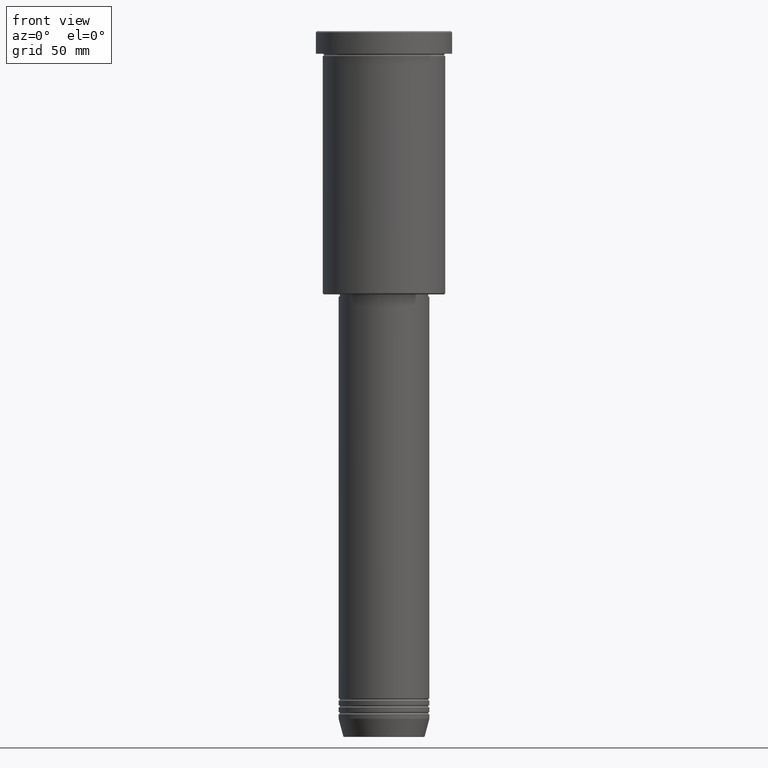
[diagram: clean part render]
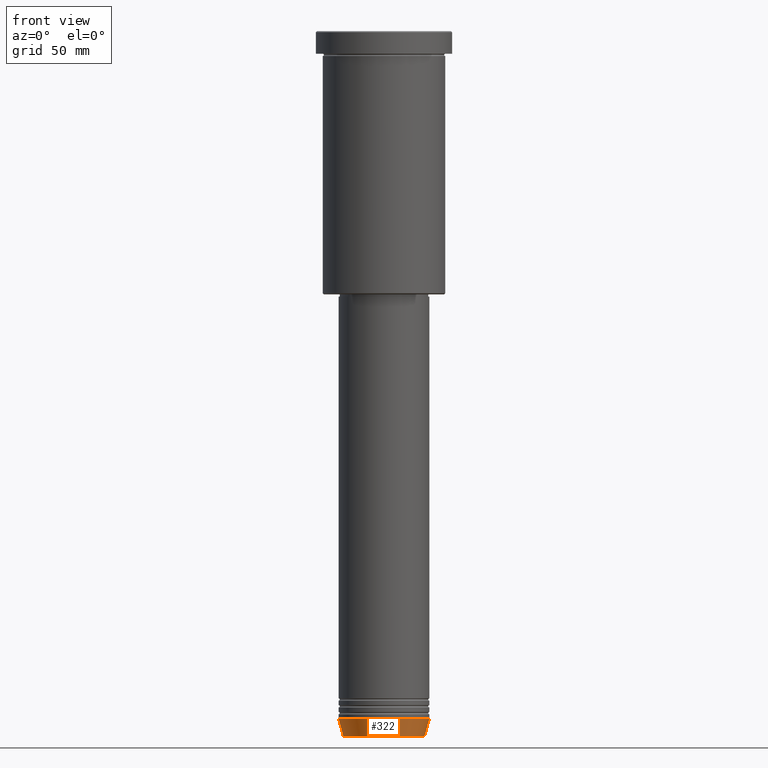
[diagram: same view with one face highlighted and labeled with its STEP entity id]
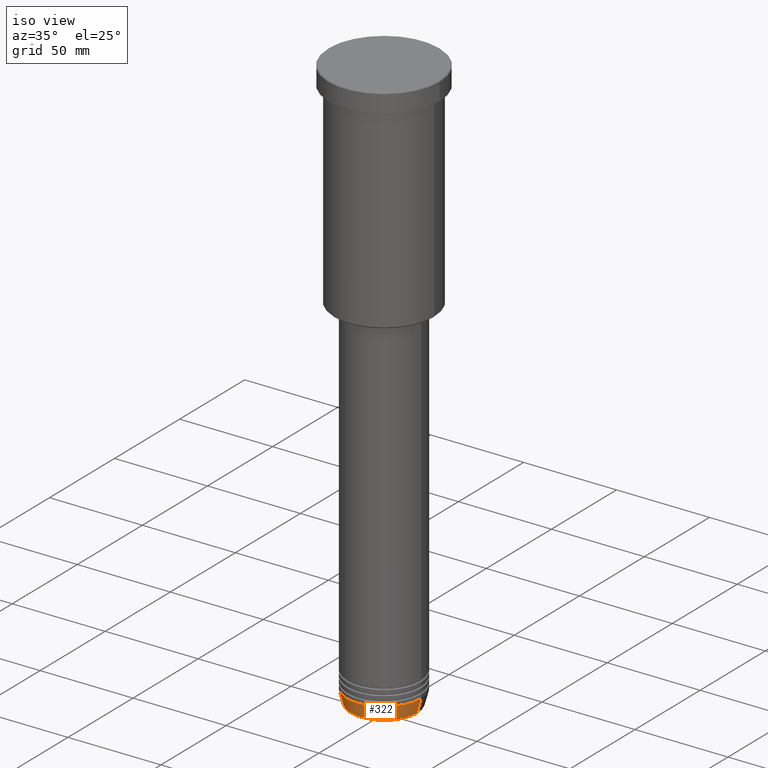
[diagram: same view with one face highlighted and labeled with its STEP entity id]
A machine part, front view. The second image highlights one B-rep face of the part: STEP entity #322.
A second angle (iso view) of the same face is appended — the face is thin or edge-on in the first view.
In plain terms, the highlighted conical surface has half-angle 15 deg.
Its self-contained STEP definition (entity closure, byte-faithful):
#1 = ORIENTED_EDGE ( 'NONE', *, *, #340, .F. ) ;
#9 = VERTEX_POINT ( 'NONE', #583 ) ;
#160 = CARTESIAN_POINT ( 'NONE',  ( 17.95570587970606269, 0.000000000000000000, -310.6294095225512706 ) ) ;
#187 = AXIS2_PLACEMENT_3D ( 'NONE', #286, #651, #925 ) ;
#211 = VERTEX_POINT ( 'NONE', #1000 ) ;
#286 = CARTESIAN_POINT ( 'NONE',  ( 0.000000000000000000, 0.000000000000000000, -303.0000000000000000 ) ) ;
#322 = ADVANCED_FACE ( 'NONE', ( #382 ), #703, .T. ) ;
#340 = EDGE_CURVE ( 'NONE', #1161, #9, #587, .T. ) ;
#352 = DIRECTION ( 'NONE',  ( -0.000000000000000000, -0.000000000000000000, 1.000000000000000000 ) ) ;
#368 = DIRECTION ( 'NONE',  ( 0.2588190451025212391, 0.000000000000000000, 0.9659258262890680902 ) ) ;
#374 = EDGE_LOOP ( 'NONE', ( #1, #865, #959, #832 ) ) ;
#382 = FACE_OUTER_BOUND ( 'NONE', #374, .T. ) ;
#401 = DIRECTION ( 'NONE',  ( -0.2588190451025212391, 3.169619151431771721E-17, 0.9659258262890680902 ) ) ;
#421 = VECTOR ( 'NONE', #368, 1000.000000000000114 ) ;
#433 = CARTESIAN_POINT ( 'NONE',  ( 0.000000000000000000, 0.000000000000000000, -303.0000000000000000 ) ) ;
#454 = CARTESIAN_POINT ( 'NONE',  ( -17.95570587970606269, 2.324116685748020582E-15, -310.6294095225512706 ) ) ;
#503 = AXIS2_PLACEMENT_3D ( 'NONE', #1069, #352, #713 ) ;
#522 = DIRECTION ( 'NONE',  ( -0.000000000000000000, -0.000000000000000000, 1.000000000000000000 ) ) ;
#531 = EDGE_CURVE ( 'NONE', #1161, #1063, #761, .T. ) ;
#547 = CARTESIAN_POINT ( 'NONE',  ( 20.00000000000000000, 0.000000000000000000, -303.0000000000000000 ) ) ;
#583 = CARTESIAN_POINT ( 'NONE',  ( -20.00000000000000000, 2.449293598294706513E-15, -303.0000000000000000 ) ) ;
#587 = LINE ( 'NONE', #1120, #784 ) ;
#649 = CIRCLE ( 'NONE', #864, 20.00000000000000000 ) ;
#651 = DIRECTION ( 'NONE',  ( -0.000000000000000000, -0.000000000000000000, 1.000000000000000000 ) ) ;
#703 = CONICAL_SURFACE ( 'NONE', #187, 20.00000000000000000, 0.2617993877991499629 ) ;
#713 = DIRECTION ( 'NONE',  ( 1.000000000000000000, 0.000000000000000000, 0.000000000000000000 ) ) ;
#759 = EDGE_CURVE ( 'NONE', #1063, #211, #1095, .T. ) ;
#761 = CIRCLE ( 'NONE', #503, 17.95570587970606269 ) ;
#784 = VECTOR ( 'NONE', #401, 1000.000000000000114 ) ;
#832 = ORIENTED_EDGE ( 'NONE', *, *, #1013, .F. ) ;
#864 = AXIS2_PLACEMENT_3D ( 'NONE', #433, #522, #983 ) ;
#865 = ORIENTED_EDGE ( 'NONE', *, *, #531, .T. ) ;
#925 = DIRECTION ( 'NONE',  ( 1.000000000000000000, 0.000000000000000000, 0.000000000000000000 ) ) ;
#959 = ORIENTED_EDGE ( 'NONE', *, *, #759, .T. ) ;
#983 = DIRECTION ( 'NONE',  ( 1.000000000000000000, 0.000000000000000000, 0.000000000000000000 ) ) ;
#1000 = CARTESIAN_POINT ( 'NONE',  ( 20.00000000000000000, 0.000000000000000000, -303.0000000000000000 ) ) ;
#1013 = EDGE_CURVE ( 'NONE', #9, #211, #649, .T. ) ;
#1063 = VERTEX_POINT ( 'NONE', #160 ) ;
#1069 = CARTESIAN_POINT ( 'NONE',  ( 0.000000000000000000, 0.000000000000000000, -310.6294095225512706 ) ) ;
#1095 = LINE ( 'NONE', #547, #421 ) ;
#1120 = CARTESIAN_POINT ( 'NONE',  ( -20.00000000000000000, 2.449293598294706513E-15, -303.0000000000000000 ) ) ;
#1161 = VERTEX_POINT ( 'NONE', #454 ) ;